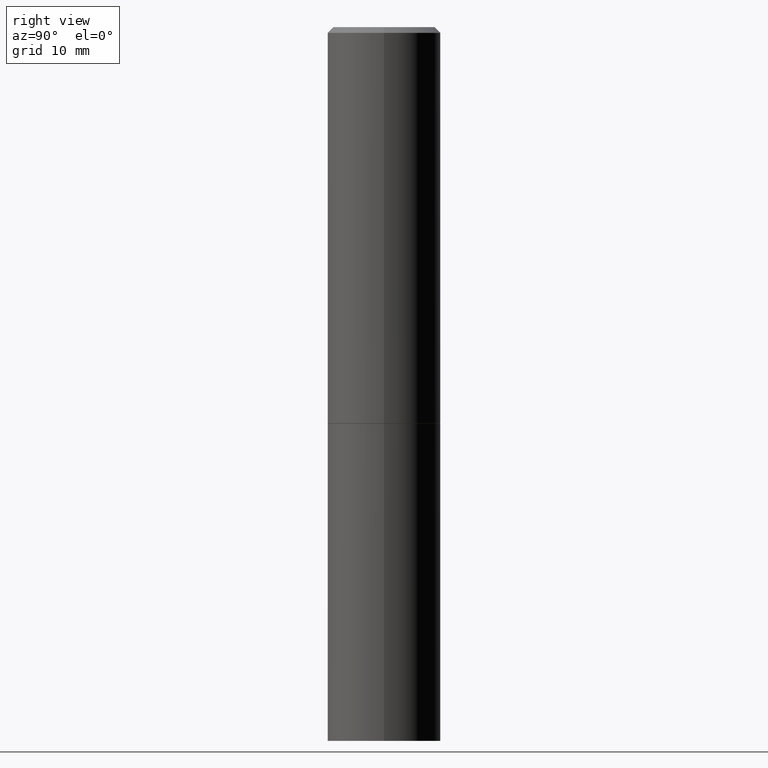
[diagram: clean part render]
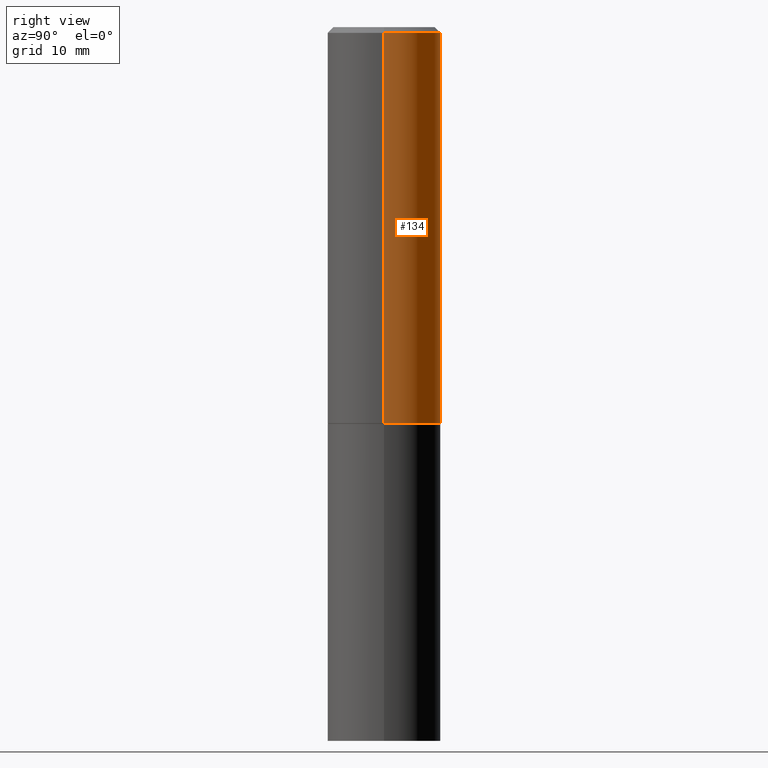
[diagram: same view with one face highlighted and labeled with its STEP entity id]
A machine part, right view. The second image highlights one B-rep face of the part: STEP entity #134.
In plain terms, the highlighted cylindrical surface (partial cylindrical patch) has radius 5 mm, axis along (-0, 0, 1).
Its self-contained STEP definition (entity closure, byte-faithful):
#9 = LINE ( 'NONE', #13, #263 ) ;
#13 = CARTESIAN_POINT ( 'NONE',  ( 0.1968499999999998307, -1.374596203102540425E-15, 9.598753983154291049E-30 ) ) ;
#14 = CIRCLE ( 'NONE', #41, 0.1968499999999999417 ) ;
#26 = AXIS2_PLACEMENT_3D ( 'NONE', #254, #116, #231 ) ;
#41 = AXIS2_PLACEMENT_3D ( 'NONE', #229, #104, #223 ) ;
#43 = ORIENTED_EDGE ( 'NONE', *, *, #289, .F. ) ;
#50 = CARTESIAN_POINT ( 'NONE',  ( -0.1968499999999999417, -1.039921765771237577E-15, -1.376900000000000013 ) ) ;
#56 = EDGE_CURVE ( 'NONE', #215, #301, #14, .T. ) ;
#65 = FACE_OUTER_BOUND ( 'NONE', #247, .T. ) ;
#91 = CARTESIAN_POINT ( 'NONE',  ( -0.1968499999999998307, 1.398703375343756013E-15, -9.682923725166775270E-30 ) ) ;
#94 = DIRECTION ( 'NONE',  ( 1.000000000000000000, -6.982962677686266711E-15, 4.876176775795935793E-29 ) ) ;
#104 = DIRECTION ( 'NONE',  ( -2.445468806185136597E-29, 3.491481338843145583E-15, 1.000000000000000000 ) ) ;
#116 = DIRECTION ( 'NONE',  ( -2.445468806185136597E-29, 3.491481338843145583E-15, 1.000000000000000000 ) ) ;
#119 = EDGE_CURVE ( 'NONE', #301, #270, #293, .T. ) ;
#123 = DIRECTION ( 'NONE',  ( -2.445468806185136597E-29, 3.491481338843145583E-15, 1.000000000000000000 ) ) ;
#133 = CARTESIAN_POINT ( 'NONE',  ( 0.1968499999999999417, -6.182016858555667463E-15, -1.376900000000000013 ) ) ;
#134 = ADVANCED_FACE ( 'NONE', ( #65 ), #316, .T. ) ;
#141 = EDGE_CURVE ( 'NONE', #215, #269, #9, .T. ) ;
#157 = CIRCLE ( 'NONE', #26, 0.1968499999999997752 ) ;
#158 = DIRECTION ( 'NONE',  ( -2.445468806185136877E-29, 3.491481338843145188E-15, 1.000000000000000000 ) ) ;
#168 = CARTESIAN_POINT ( 'NONE',  ( 0.1968499999999997752, -1.420318657638187544E-15, -0.02000000000000004205 ) ) ;
#177 = CARTESIAN_POINT ( 'NONE',  ( 0.000000000000000000, 0.000000000000000000, 0.000000000000000000 ) ) ;
#186 = VECTOR ( 'NONE', #208, 39.37007874015748143 ) ;
#208 = DIRECTION ( 'NONE',  ( -2.445468806185136877E-29, 3.491481338843145188E-15, 1.000000000000000000 ) ) ;
#212 = ORIENTED_EDGE ( 'NONE', *, *, #119, .T. ) ;
#215 = VERTEX_POINT ( 'NONE', #133 ) ;
#220 = AXIS2_PLACEMENT_3D ( 'NONE', #177, #123, #94 ) ;
#223 = DIRECTION ( 'NONE',  ( 1.000000000000000000, -6.982962677686265922E-15, 0.000000000000000000 ) ) ;
#229 = CARTESIAN_POINT ( 'NONE',  ( 3.367165999236314681E-29, -4.807420655453126643E-15, -1.376900000000000013 ) ) ;
#231 = DIRECTION ( 'NONE',  ( 1.000000000000000000, -6.982962677686266711E-15, 0.000000000000000000 ) ) ;
#247 = EDGE_LOOP ( 'NONE', ( #298, #212, #43, #356 ) ) ;
#254 = CARTESIAN_POINT ( 'NONE',  ( 4.890937612370283668E-31, -6.982962677686305168E-17, -0.02000000000000004205 ) ) ;
#263 = VECTOR ( 'NONE', #158, 39.37007874015748143 ) ;
#269 = VERTEX_POINT ( 'NONE', #168 ) ;
#270 = VERTEX_POINT ( 'NONE', #279 ) ;
#279 = CARTESIAN_POINT ( 'NONE',  ( -0.1968499999999997752, 1.304766576325676930E-15, -0.02000000000000004205 ) ) ;
#289 = EDGE_CURVE ( 'NONE', #269, #270, #157, .T. ) ;
#293 = LINE ( 'NONE', #91, #186 ) ;
#298 = ORIENTED_EDGE ( 'NONE', *, *, #56, .T. ) ;
#301 = VERTEX_POINT ( 'NONE', #50 ) ;
#316 = CYLINDRICAL_SURFACE ( 'NONE', #220, 0.1968499999999998307 ) ;
#356 = ORIENTED_EDGE ( 'NONE', *, *, #141, .F. ) ;